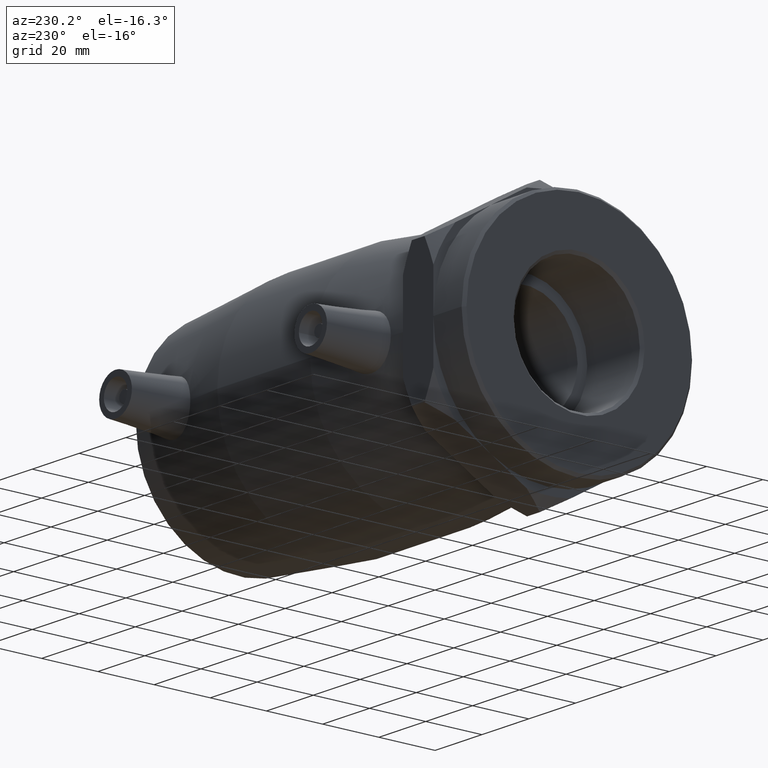
[diagram: clean part render]
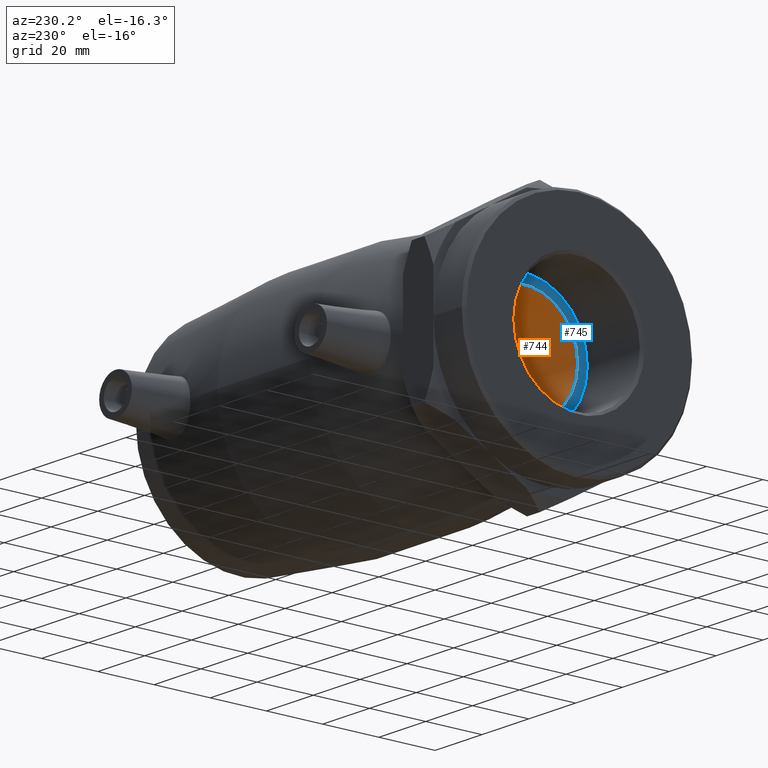
[diagram: same view with the hole feature highlighted: cylindrical wall and planar end face, labeled with their STEP entity ids]
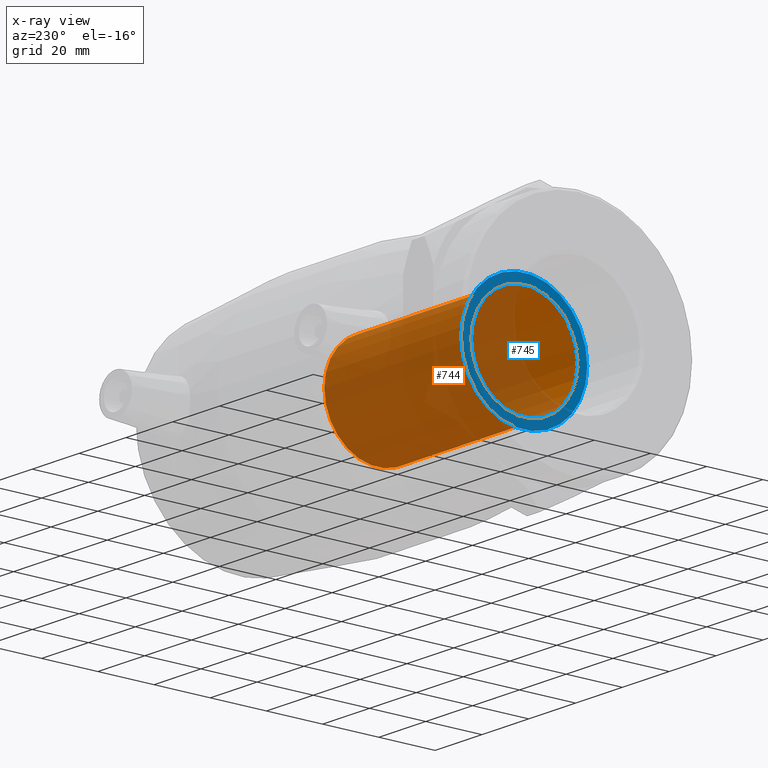
[diagram: x-ray of the same camera — body ghosted, the hole faces saturated]
A machine part, auxiliary view. The highlighted faces form one hole feature of diameter 38 mm: the cylindrical wall (entity #744, orange) and its adjacent planar end face (entity #745, blue) — they share a circular edge in the B-rep.
The next image is the same camera in x-ray (body ghosted, the hole faces saturated) — the bore reads through the body.
Wall:
#92=CYLINDRICAL_SURFACE('',#827,19.);
#131=FACE_BOUND('',#248,.T.);
#185=FACE_OUTER_BOUND('',#247,.T.);
#247=EDGE_LOOP('',(#637));
#248=EDGE_LOOP('',(#638));
#318=CIRCLE('',#828,19.);
#319=CIRCLE('',#829,19.);
#387=VERTEX_POINT('',#1299);
#388=VERTEX_POINT('',#1301);
#482=EDGE_CURVE('',#387,#387,#318,.T.);
#483=EDGE_CURVE('',#388,#388,#319,.T.);
#637=ORIENTED_EDGE('',*,*,#482,.T.);
#638=ORIENTED_EDGE('',*,*,#483,.F.);
#744=ADVANCED_FACE('',(#185,#131),#92,.F.);
#827=AXIS2_PLACEMENT_3D('',#1298,#1011,#1012);
#828=AXIS2_PLACEMENT_3D('',#1300,#1013,#1014);
#829=AXIS2_PLACEMENT_3D('',#1302,#1015,#1016);
#1011=DIRECTION('center_axis',(1.,0.,0.));
#1012=DIRECTION('ref_axis',(0.,1.,0.));
#1013=DIRECTION('center_axis',(1.,0.,0.));
#1014=DIRECTION('ref_axis',(0.,0.,-1.));
#1015=DIRECTION('center_axis',(1.,0.,0.));
#1016=DIRECTION('ref_axis',(0.,0.,-1.));
#1298=CARTESIAN_POINT('Origin',(-30.8,0.,0.));
#1299=CARTESIAN_POINT('',(0.500000000000006,19.,0.));
#1300=CARTESIAN_POINT('Origin',(0.500000000000007,0.,0.));
#1301=CARTESIAN_POINT('',(-62.1,19.,0.));
#1302=CARTESIAN_POINT('Origin',(-62.1,0.,0.));
End face:
#113=PLANE('',#830);
#132=FACE_BOUND('',#250,.T.);
#186=FACE_OUTER_BOUND('',#249,.T.);
#249=EDGE_LOOP('',(#639));
#250=EDGE_LOOP('',(#640));
#298=CIRCLE('',#781,22.4225);
#319=CIRCLE('',#829,19.);
#343=VERTEX_POINT('',#1112);
#388=VERTEX_POINT('',#1301);
#414=EDGE_CURVE('',#343,#343,#298,.T.);
#483=EDGE_CURVE('',#388,#388,#319,.T.);
#639=ORIENTED_EDGE('',*,*,#414,.F.);
#640=ORIENTED_EDGE('',*,*,#483,.T.);
#745=ADVANCED_FACE('',(#186,#132),#113,.T.);
#781=AXIS2_PLACEMENT_3D('',#1113,#895,#896);
#829=AXIS2_PLACEMENT_3D('',#1302,#1015,#1016);
#830=AXIS2_PLACEMENT_3D('',#1303,#1017,#1018);
#895=DIRECTION('center_axis',(1.,0.,0.));
#896=DIRECTION('ref_axis',(0.,0.,-1.));
#1015=DIRECTION('center_axis',(1.,0.,0.));
#1016=DIRECTION('ref_axis',(0.,0.,-1.));
#1017=DIRECTION('center_axis',(-1.,0.,0.));
#1018=DIRECTION('ref_axis',(0.,0.,1.));
#1112=CARTESIAN_POINT('',(-62.1,22.4225,0.));
#1113=CARTESIAN_POINT('Origin',(-62.1,0.,0.));
#1301=CARTESIAN_POINT('',(-62.1,19.,0.));
#1302=CARTESIAN_POINT('Origin',(-62.1,0.,0.));
#1303=CARTESIAN_POINT('Origin',(-62.1,22.4225,0.));